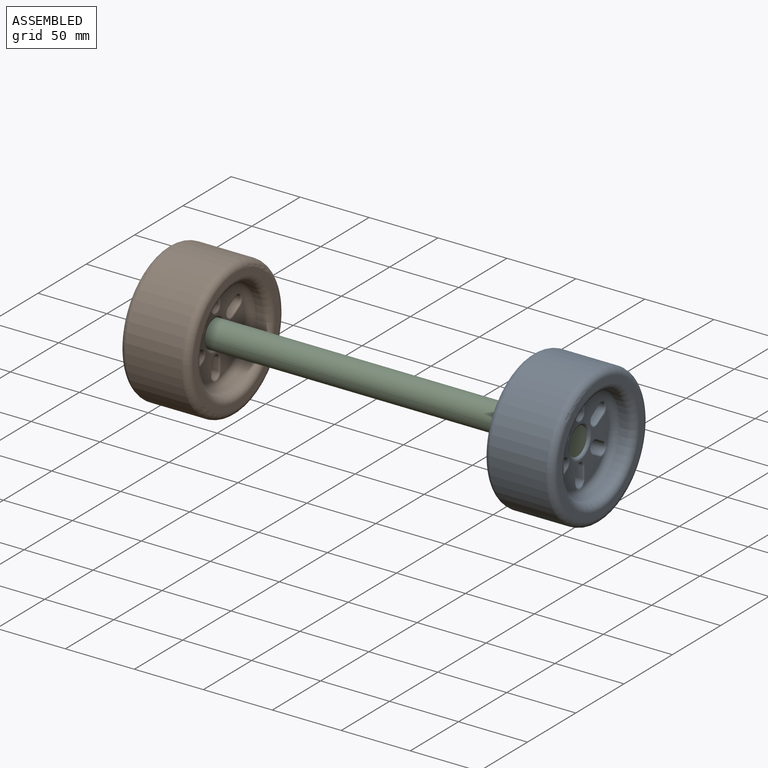
[diagram: assembled view]
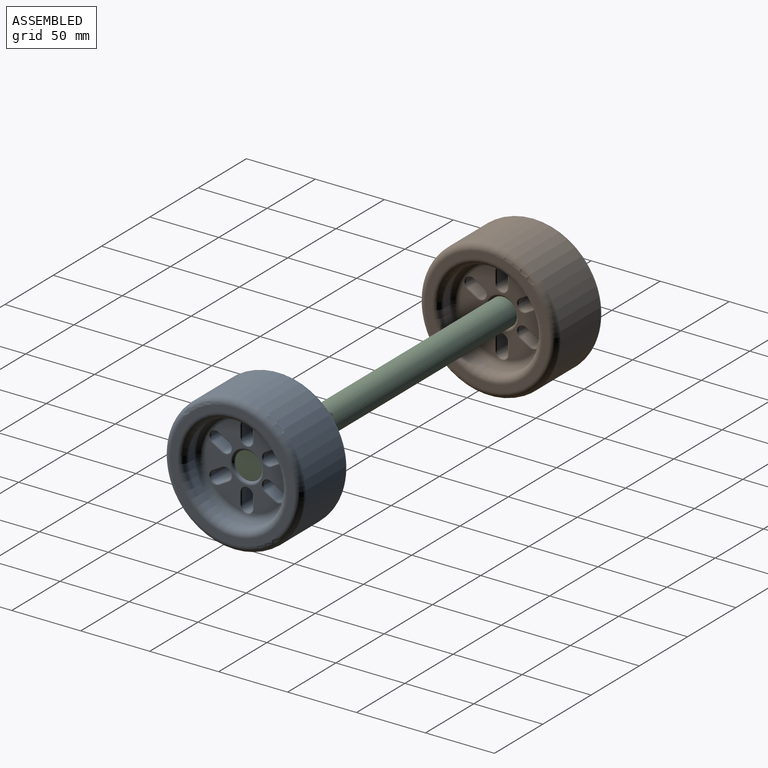
[diagram: assembled view, second angle]
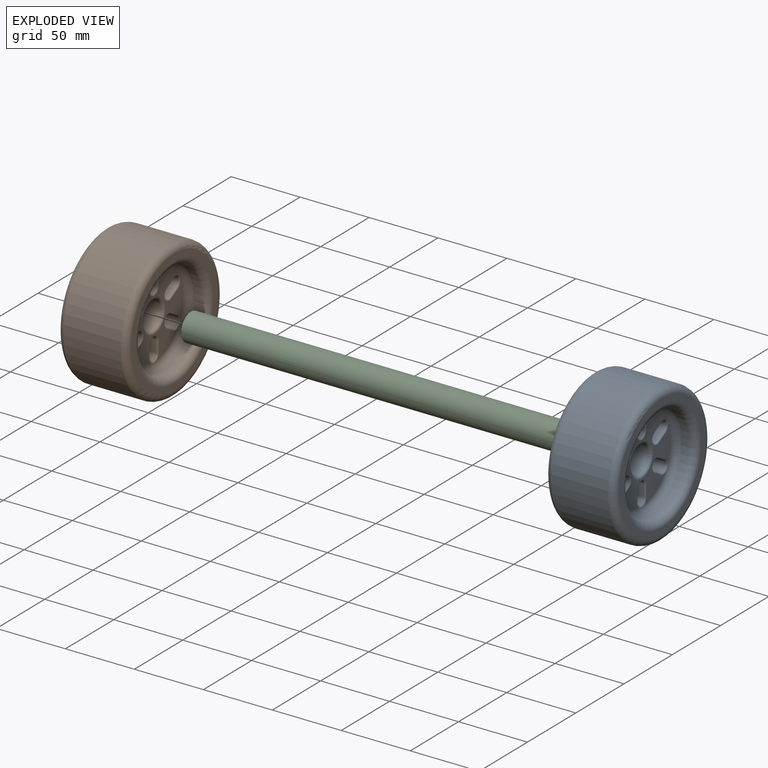
[diagram: exploded view]
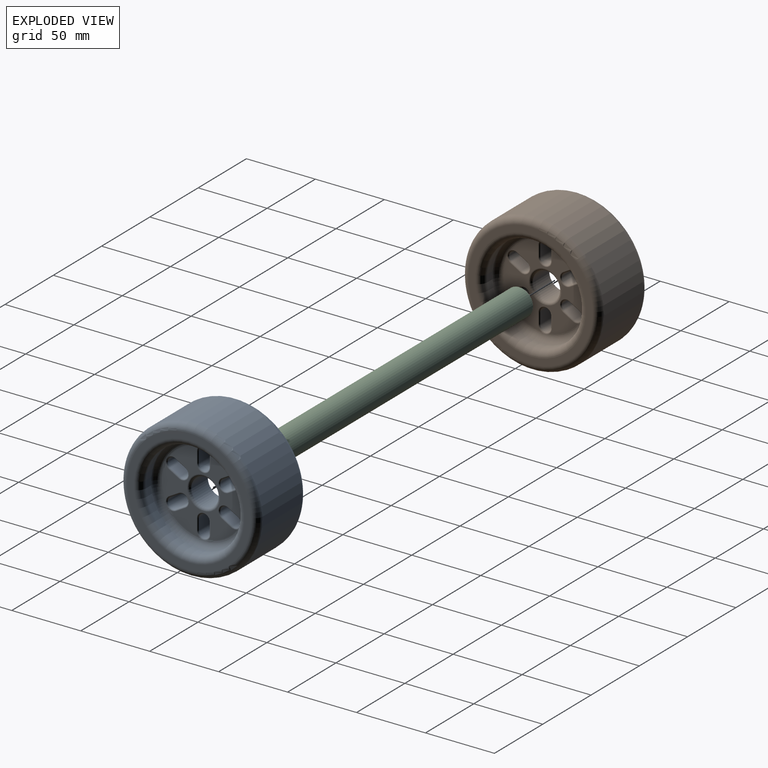
[diagram: exploded view, second angle]
ASSEMBLY  parts=3 mates=2
PART A: 112 faces, bbox 50x108.2x108.2 mm
  f0: torus R=5mm, axis (1,0,0), area 21.5mm2, adj f1,f2,f13,f81
  f1: cylinder r=1mm len=7.43mm, axis (0,0.87,0.5), area 12.6mm2, adj f0,f3,f14,f81
  f2: cylinder r=1mm len=7.43mm, axis (0,-0.87,-0.5), area 12.6mm2, adj f0,f4,f12,f81
  f3: torus R=5mm, axis (1,0,0), area 6mm2, adj f1,f5,f15,f81
  f4: torus R=5mm, axis (1,0,0), area 6mm2, adj f2,f5,f15,f81
  f5: bspline ~6.6x3.78mm, area 8.8mm2, adj f3,f4,f15,f90
  f6: cylinder r=1mm len=7.43mm, axis (0,-0.87,-0.5), area 12.6mm2, adj f7,f8,f14,f80
  f7: torus R=5mm, axis (1,0,0), area 6mm2, adj f6,f9,f15,f80
  f8: torus R=5mm, axis (1,0,0), area 21.5mm2, adj f6,f10,f13,f80
  f9: bspline ~6.6x3.78mm, area 8.8mm2, adj f7,f11,f15,f86
  f10: cylinder r=1mm len=7.43mm, axis (0,0.87,0.5), area 12.6mm2, adj f8,f11,f12,f80
  f11: torus R=5mm, axis (1,0,0), area 6mm2, adj f9,f10,f15,f80
  f12: plane 18x6.93mm, normal (0,0.5,-0.87), area 144mm2, adj f2,f10,f13,f15
  f13: cylinder r=4mm len=18mm, axis (1,0,0), area 226.2mm2, adj f0,f8,f12,f14
  f14: plane 18x6.93mm, normal (0,-0.5,0.87), area 144mm2, adj f1,f6,f13,f15
  f15: cylinder r=4mm len=18.17mm, axis (1,0,0), area 226.7mm2, adj f3,f4,f5,f7,f9,f11,f12,f14
  f16: torus R=5mm, axis (1,0,0), area 21.5mm2, adj f17,f18,f29,f81
  f17: cylinder r=1mm len=7.43mm, axis (0,0.87,-0.5), area 12.6mm2, adj f16,f19,f30,f81
  f18: cylinder r=1mm len=7.43mm, axis (0,-0.87,0.5), area 12.6mm2, adj f16,f20,f28,f81
  f19: torus R=5mm, axis (1,0,0), area 6mm2, adj f17,f21,f31,f81
  f20: torus R=5mm, axis (1,0,0), area 6mm2, adj f18,f21,f31,f81
  f21: bspline ~6.82x4.37mm, area 8.8mm2, adj f19,f20,f31,f90
  f22: cylinder r=1mm len=7.43mm, axis (0,-0.87,0.5), area 12.6mm2, adj f23,f24,f30,f80
  f23: torus R=5mm, axis (1,0,0), area 6mm2, adj f22,f25,f31,f80
  f24: torus R=5mm, axis (1,0,0), area 21.5mm2, adj f22,f26,f29,f80
  f25: bspline ~6.82x4.37mm, area 8.8mm2, adj f23,f27,f31,f86
  f26: cylinder r=1mm len=7.43mm, axis (0,0.87,-0.5), area 12.6mm2, adj f24,f27,f28,f80
  f27: torus R=5mm, axis (1,0,0), area 6mm2, adj f25,f26,f31,f80
  f28: plane 18x6.93mm, normal (0,-0.5,-0.87), area 144mm2, adj f18,f26,f29,f31
  f29: cylinder r=4mm len=18mm, axis (1,0,0), area 226.2mm2, adj f16,f24,f28,f30
  f30: plane 18x6.93mm, normal (0,0.5,0.87), area 144mm2, adj f17,f22,f29,f31
  f31: cylinder r=4mm len=18.17mm, axis (1,0,0), area 226.7mm2, adj f19,f20,f21,f23,f25,f27,f28,f30
  f32: torus R=5mm, axis (1,0,0), area 21.5mm2, adj f33,f34,f45,f81
  f33: cylinder r=1mm len=8mm, axis (0,0,-1), area 12.6mm2, adj f32,f35,f46,f81
  f34: cylinder r=1mm len=8mm, axis (0,0,1), area 12.6mm2, adj f32,f36,f44,f81
  f35: torus R=5mm, axis (1,0,0), area 6mm2, adj f33,f37,f47,f81
  f36: torus R=5mm, axis (1,0,0), area 6mm2, adj f34,f37,f47,f81
  f37: bspline ~7.87x2.35mm, area 8.8mm2, adj f35,f36,f47,f90
  f38: cylinder r=1mm len=8mm, axis (0,0,1), area 12.6mm2, adj f39,f40,f46,f80
  f39: torus R=5mm, axis (1,0,0), area 6mm2, adj f38,f41,f47,f80
  f40: torus R=5mm, axis (1,0,0), area 21.5mm2, adj f38,f42,f45,f80
  f41: bspline ~7.87x2.35mm, area 8.8mm2, adj f39,f43,f47,f86
  f42: cylinder r=1mm len=8mm, axis (0,0,-1), area 12.6mm2, adj f40,f43,f44,f80
  f43: torus R=5mm, axis (1,0,0), area 6mm2, adj f41,f42,f47,f80
  f44: plane 18x8mm, normal (0,-1,0), area 144mm2, adj f34,f42,f45,f47
  f45: cylinder r=4mm len=18mm, axis (1,0,0), area 226.2mm2, adj f32,f40,f44,f46
  f46: plane 18x8mm, normal (0,1,0), area 144mm2, adj f33,f38,f45,f47
  f47: cylinder r=4mm len=18.17mm, axis (1,0,0), area 226.7mm2, adj f35,f36,f37,f39,f41,f43,f44,f46
  f48: torus R=5mm, axis (1,0,0), area 21.5mm2, adj f49,f50,f61,f81
  f49: cylinder r=1mm len=7.43mm, axis (0,-0.87,-0.5), area 12.6mm2, adj f48,f51,f62,f81
  f50: cylinder r=1mm len=7.43mm, axis (0,0.87,0.5), area 12.6mm2, adj f48,f52,f60,f81
  f51: torus R=5mm, axis (1,0,0), area 6mm2, adj f49,f53,f63,f81
  f52: torus R=5mm, axis (1,0,0), area 6mm2, adj f50,f53,f63,f81
  f53: bspline ~6.6x3.78mm, area 8.8mm2, adj f51,f52,f63,f90
  f54: cylinder r=1mm len=7.43mm, axis (0,0.87,0.5), area 12.6mm2, adj f55,f56,f62,f80
  f55: torus R=5mm, axis (1,0,0), area 6mm2, adj f54,f57,f63,f80
  f56: torus R=5mm, axis (1,0,0), area 21.5mm2, adj f54,f58,f61,f80
  f57: bspline ~6.6x3.78mm, area 8.8mm2, adj f55,f59,f63,f86
  f58: cylinder r=1mm len=7.43mm, axis (0,-0.87,-0.5), area 12.6mm2, adj f56,f59,f60,f80
  f59: torus R=5mm, axis (1,0,0), area 6mm2, adj f57,f58,f63,f80
  f60: plane 18x6.93mm, normal (0,-0.5,0.87), area 144mm2, adj f50,f58,f61,f63
  f61: cylinder r=4mm len=18mm, axis (1,0,0), area 226.2mm2, adj f48,f56,f60,f62
  f62: plane 18x6.93mm, normal (0,0.5,-0.87), area 144mm2, adj f49,f54,f61,f63
  f63: cylinder r=4mm len=18.17mm, axis (1,0,0), area 226.7mm2, adj f51,f52,f53,f55,f57,f59,f60,f62
  f64: torus R=5mm, axis (1,0,0), area 21.5mm2, adj f65,f66,f77,f81
  f65: cylinder r=1mm len=7.43mm, axis (0,-0.87,0.5), area 12.6mm2, adj f64,f67,f78,f81
  f66: cylinder r=1mm len=7.43mm, axis (0,0.87,-0.5), area 12.6mm2, adj f64,f68,f76,f81
  f67: torus R=5mm, axis (1,0,0), area 6mm2, adj f65,f69,f79,f81
  f68: torus R=5mm, axis (1,0,0), area 6mm2, adj f66,f69,f79,f81
  f69: bspline ~6.82x4.37mm, area 8.8mm2, adj f67,f68,f79,f90
  f70: cylinder r=1mm len=7.43mm, axis (0,0.87,-0.5), area 12.6mm2, adj f71,f72,f78,f80
  f71: torus R=5mm, axis (1,0,0), area 6mm2, adj f70,f73,f79,f80
  f72: torus R=5mm, axis (1,0,0), area 21.5mm2, adj f70,f74,f77,f80
  f73: bspline ~6.82x4.37mm, area 8.8mm2, adj f71,f75,f79,f86
  f74: cylinder r=1mm len=7.43mm, axis (0,-0.87,0.5), area 12.6mm2, adj f72,f75,f76,f80
  f75: torus R=5mm, axis (1,0,0), area 6mm2, adj f73,f74,f79,f80
  f76: plane 18x6.93mm, normal (0,0.5,0.87), area 144mm2, adj f66,f74,f77,f79
  f77: cylinder r=4mm len=18mm, axis (1,0,0), area 226.2mm2, adj f64,f72,f76,f78
  f78: plane 18x6.93mm, normal (0,-0.5,-0.87), area 144mm2, adj f65,f70,f77,f79
  f79: cylinder r=4mm len=18.17mm, axis (1,0,0), area 226.7mm2, adj f67,f68,f69,f71,f73,f75,f76,f78
  f80: plane 60x59.65mm, normal (-1,0,0), area 1450.3mm2, adj f6,f7,f8,f10,f11,f22,f23,f24
  f81: plane 60x59.65mm, normal (1,0,0), area 1450.3mm2, adj f0,f1,f2,f3,f4,f16,f17,f18
  f82: torus R=45mm, axis (-1,0,0), area 2377.7mm2, adj f83,f95
  f83: plane 90x90mm, normal (-1,0,0), area 1335.2mm2, adj f82,f84
  f84: torus R=40mm, axis (-1,0,0), area 1816.8mm2, adj f83,f85
  f85: cylinder r=35mm len=70mm, axis (-1,0,0), area 1099.6mm2, adj f84,f86
  f86: torus R=30mm, axis (-1,0,0), area 1615.4mm2, adj f9,f25,f41,f57,f73,f80,f85,f103
  f87: torus R=12mm, axis (-1,0,0), area 211.7mm2, adj f80,f88
  f88: cylinder r=10mm len=20mm, axis (-1,0,0), area 1005.3mm2, adj f87,f89
  f89: torus R=12mm, axis (-1,0,0), area 211.7mm2, adj f81,f88
  f90: torus R=30mm, axis (-1,0,0), area 1615.4mm2, adj f5,f21,f37,f53,f69,f81,f91,f111
  f91: cylinder r=35mm len=70mm, axis (-1,0,0), area 1099.6mm2, adj f90,f92
  f92: torus R=40mm, axis (-1,0,0), area 1816.8mm2, adj f91,f93
  f93: plane 90x90mm, normal (1,0,0), area 1335.2mm2, adj f92,f94
  f94: torus R=45mm, axis (-1,0,0), area 2377.7mm2, adj f93,f95
  f95: cylinder r=50mm len=100mm, axis (-1,0,0), area 12566.4mm2, adj f82,f94
  f96: cylinder r=4mm len=18mm, axis (1,0,0), area 226.2mm2, adj f97,f98,f102,f106
  f97: plane 18x8mm, normal (0,1,0), area 144mm2, adj f96,f99,f104,f108
  f98: plane 18x8mm, normal (0,-1,0), area 144mm2, adj f96,f99,f100,f107
  f99: cylinder r=4mm len=18.17mm, axis (1,0,0), area 226.7mm2, adj f97,f98,f101,f103,f105,f109,f110,f111
  f100: cylinder r=1mm len=8mm, axis (0,0,-1), area 12.6mm2, adj f80,f98,f101,f102
  f101: torus R=5mm, axis (1,0,0), area 6mm2, adj f80,f99,f100,f103
  f102: torus R=5mm, axis (1,0,0), area 21.5mm2, adj f80,f96,f100,f104
  f103: bspline ~7.87x2.35mm, area 8.8mm2, adj f86,f99,f101,f105
  f104: cylinder r=1mm len=8mm, axis (0,0,1), area 12.6mm2, adj f80,f97,f102,f105
  f105: torus R=5mm, axis (1,0,0), area 6mm2, adj f80,f99,f103,f104
  f106: torus R=5mm, axis (1,0,0), area 21.5mm2, adj f81,f96,f107,f108
  f107: cylinder r=1mm len=8mm, axis (0,0,1), area 12.6mm2, adj f81,f98,f106,f109
  f108: cylinder r=1mm len=8mm, axis (0,0,-1), area 12.6mm2, adj f81,f97,f106,f110
  f109: torus R=5mm, axis (1,0,0), area 6mm2, adj f81,f99,f107,f111
  f110: torus R=5mm, axis (1,0,0), area 6mm2, adj f81,f99,f108,f111
  f111: bspline ~7.87x2.35mm, area 8.8mm2, adj f90,f99,f109,f110
PART B: same geometry as A
PART C: 3 faces, bbox 20x20x280 mm
  f0: cylinder r=10mm len=280mm, axis (0,0,-1), area 17592.9mm2, adj f1,f2
  f1: plane 20x20mm, normal (0,0,1), area 314.2mm2, adj f0
  f2: plane 20x20mm, normal (0,0,-1), area 314.2mm2, adj f0
PLACE A rot(axis=(0,1,0),180deg) t=(291.4,16.45,-20.28)mm
PLACE B t=(27.4,16.45,-20.28)mm
PLACE C rot(axis=(0,1,0),90deg) t=(19.4,16.45,-20.28)mm
MATE fastened A.f82 <-> C.f0  axis (1,0,0) through (299.4,16.45,-20.28)mm
MATE fastened C.f0 <-> B.f82  axis (-1,0,0) through (19.4,16.45,-20.28)mm
